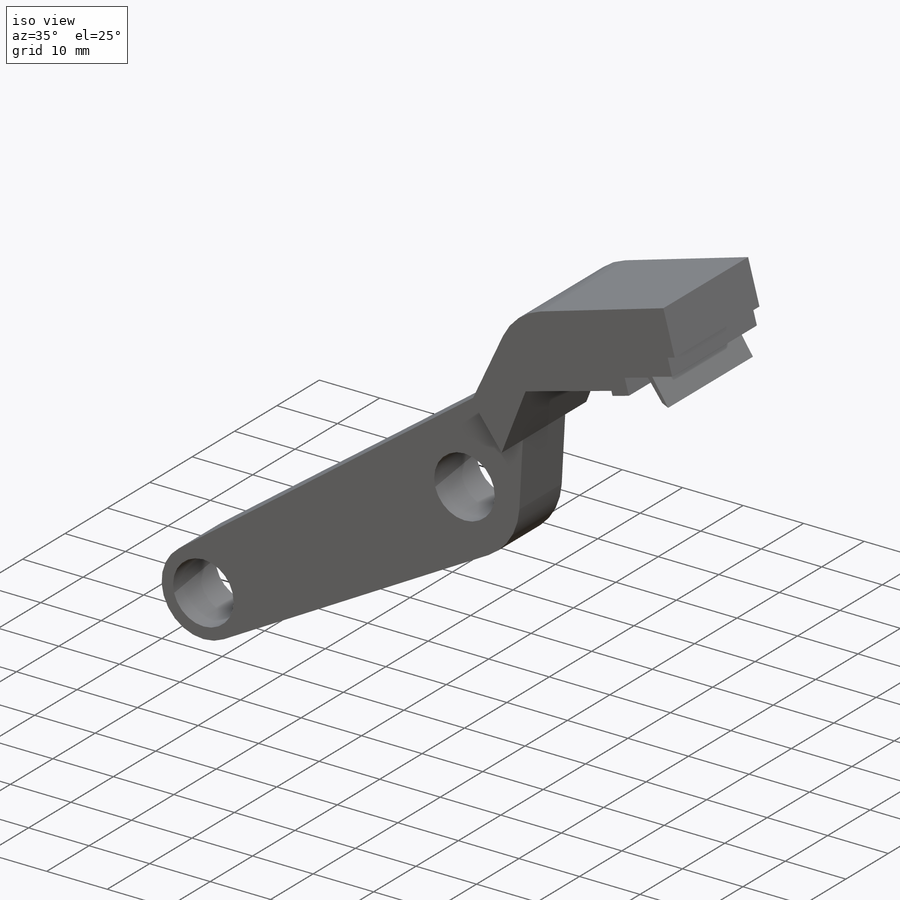
[diagram: iso view]
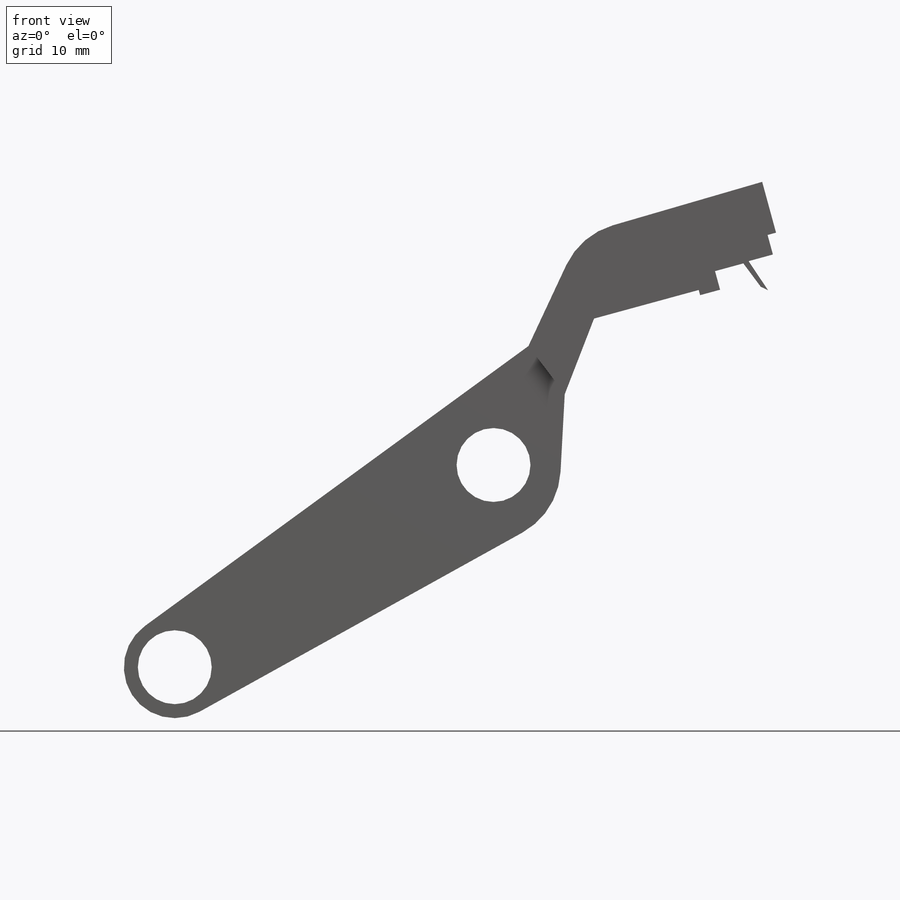
[diagram: front view]
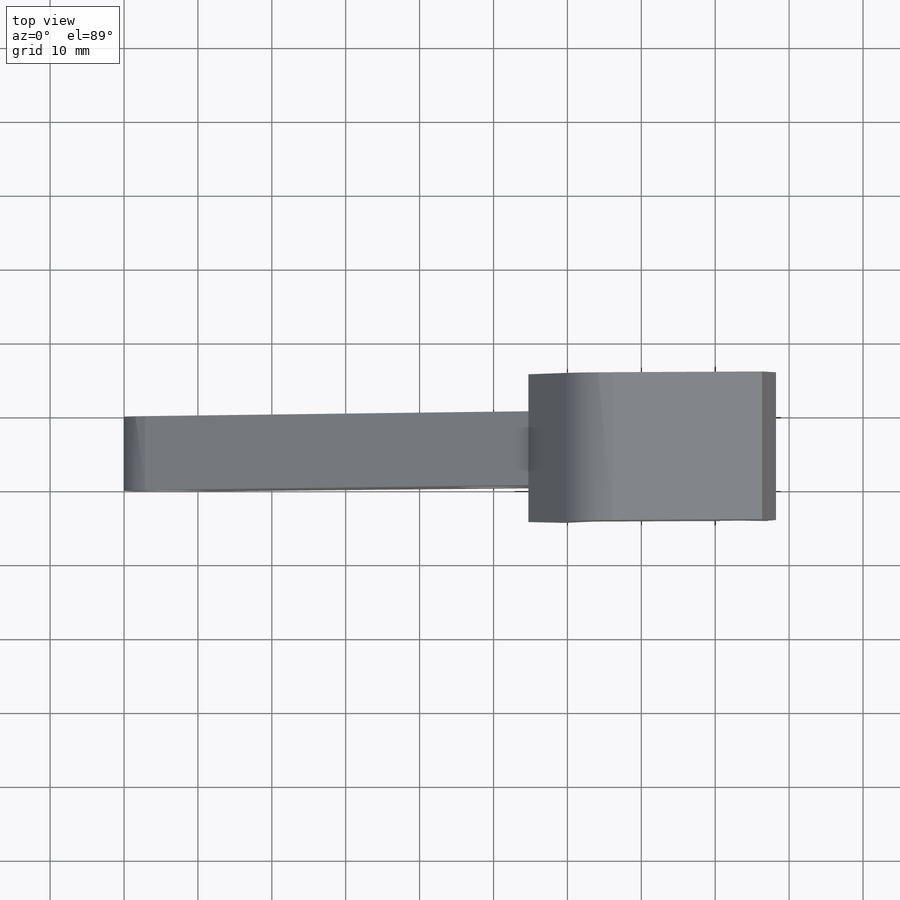
[diagram: top view]
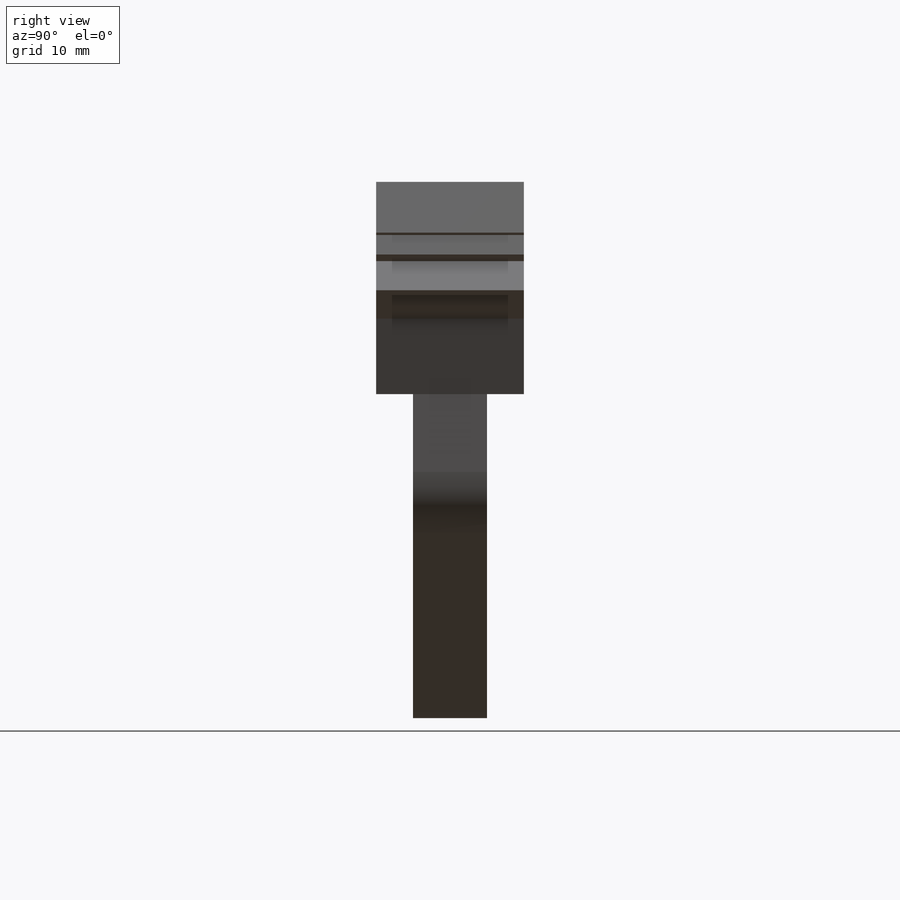
[diagram: right view]
SOLIDWORKS PART (.sldprt)
format: sldprt  version: not decoded by parser v0  size: 177,664 bytes
history: native  units: mm
features: plane x4, sketch x3, extrude x3, material x1 (+8 scaffold rows collapsed)
feature tree (19):
  scaffold x8  (default folders/planes/origin — collapsed)
  material  "材质 <未指定>"
  plane  "前视基准面"
  plane  "上视基准面"
  plane  "右视基准面"
  sketch  "草图1"  dims[D1=10.0mm D2=50.0mm]
  extrude  "凸台-拉伸1"  Depth=10mm
  plane  "基准面1"  Offset=5mm
  sketch  "草图2"  dims[D1=10.0mm]
  extrude  "凸台-拉伸2"  Depth=20mm
  sketch  "草图3"
  extrude  "凸台-拉伸3"  Depth=20mm
decode coverage: 5 of 6 modeling features carry decoded parameters
note: suppression state not decoded; provenance and decode notes live in map.json
